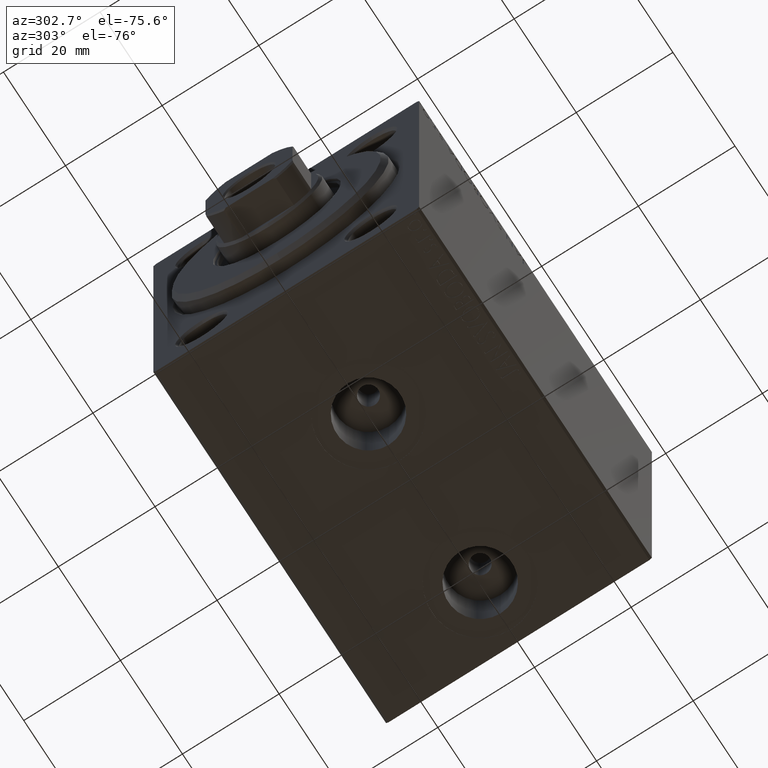
[diagram: clean part render]
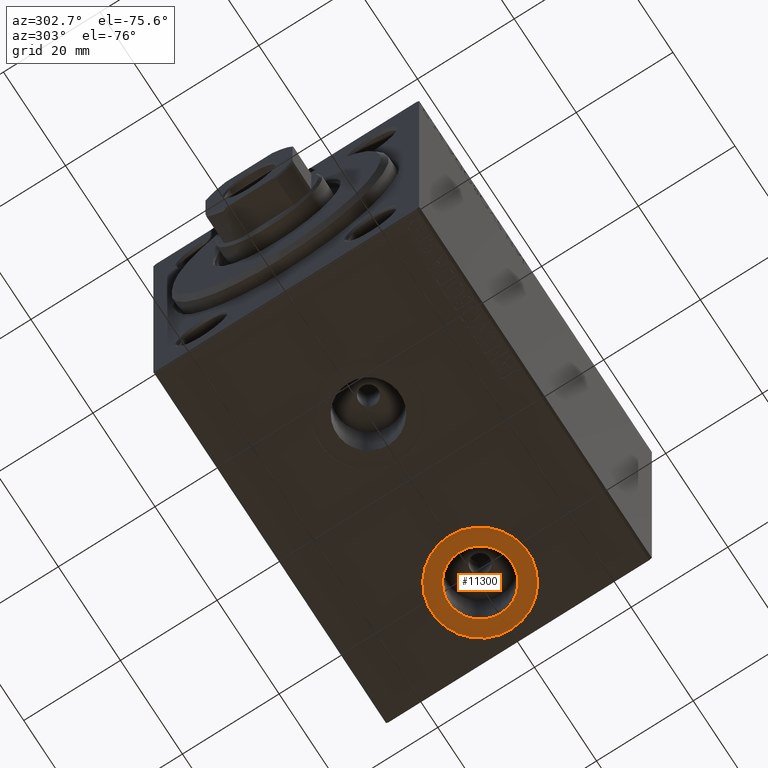
[diagram: same view with one face highlighted and labeled with its STEP entity id]
A machine part, auxiliary view. The second image highlights one B-rep face of the part: STEP entity #11300.
In plain terms, the highlighted planar face has unit normal (0, 0, -1).
Its self-contained STEP definition (entity closure, byte-faithful):
#1800 = CARTESIAN_POINT ( 'NONE',  ( 62.49999999999999289, -7.523326685254106813E-15, -37.39999999999999858 ) ) ;
#2183 = AXIS2_PLACEMENT_3D ( 'NONE', #11952, #25627, #29425 ) ;
#4035 = PLANE ( 'NONE',  #39872 ) ;
#5608 = DIRECTION ( 'NONE',  ( 0.000000000000000000, 0.000000000000000000, -1.000000000000000000 ) ) ;
#7395 = DIRECTION ( 'NONE',  ( 0.000000000000000000, 0.000000000000000000, -1.000000000000000000 ) ) ;
#8285 = FACE_OUTER_BOUND ( 'NONE', #29885, .T. ) ;
#9999 = CARTESIAN_POINT ( 'NONE',  ( 52.49999999999999289, -7.523326685254106813E-15, -37.39999999999999858 ) ) ;
#10076 = ORIENTED_EDGE ( 'NONE', *, *, #29024, .T. ) ;
#10896 = ORIENTED_EDGE ( 'NONE', *, *, #38721, .F. ) ;
#11300 = ADVANCED_FACE ( 'NONE', ( #25120, #8285 ), #4035, .T. ) ;
#11373 = CARTESIAN_POINT ( 'NONE',  ( 55.91999999999998749, -7.523326685254106813E-15, -37.39999999999999858 ) ) ;
#11678 = CIRCLE ( 'NONE', #17415, 6.580000000000002736 ) ;
#11952 = CARTESIAN_POINT ( 'NONE',  ( 62.49999999999999289, -7.523326685254106813E-15, -37.39999999999999858 ) ) ;
#12829 = ORIENTED_EDGE ( 'NONE', *, *, #35863, .F. ) ;
#14366 = CARTESIAN_POINT ( 'NONE',  ( 62.49999999999999289, -7.523326685254106813E-15, -37.39999999999999858 ) ) ;
#16559 = CARTESIAN_POINT ( 'NONE',  ( 69.07999999999999829, -6.717509091415148559E-15, -37.39999999999999858 ) ) ;
#17415 = AXIS2_PLACEMENT_3D ( 'NONE', #21880, #35542, #35982 ) ;
#18767 = VERTEX_POINT ( 'NONE', #16559 ) ;
#19403 = CIRCLE ( 'NONE', #2183, 10.00000000000000178 ) ;
#21614 = CIRCLE ( 'NONE', #23848, 10.00000000000000178 ) ;
#21880 = CARTESIAN_POINT ( 'NONE',  ( 62.49999999999999289, -7.523326685254106813E-15, -37.39999999999999858 ) ) ;
#22487 = VERTEX_POINT ( 'NONE', #11373 ) ;
#22523 = DIRECTION ( 'NONE',  ( 0.000000000000000000, 0.000000000000000000, -1.000000000000000000 ) ) ;
#23848 = AXIS2_PLACEMENT_3D ( 'NONE', #35752, #22523, #32606 ) ;
#25120 = FACE_BOUND ( 'NONE', #40652, .T. ) ;
#25627 = DIRECTION ( 'NONE',  ( 0.000000000000000000, 0.000000000000000000, -1.000000000000000000 ) ) ;
#28127 = AXIS2_PLACEMENT_3D ( 'NONE', #1800, #5608, #42849 ) ;
#29024 = EDGE_CURVE ( 'NONE', #35778, #41755, #19403, .T. ) ;
#29425 = DIRECTION ( 'NONE',  ( -1.000000000000000000, 0.000000000000000000, 0.000000000000000000 ) ) ;
#29885 = EDGE_LOOP ( 'NONE', ( #37014, #10076 ) ) ;
#31629 = DIRECTION ( 'NONE',  ( -1.000000000000000000, 0.000000000000000000, -0.000000000000000000 ) ) ;
#32606 = DIRECTION ( 'NONE',  ( -1.000000000000000000, 0.000000000000000000, 0.000000000000000000 ) ) ;
#34908 = EDGE_CURVE ( 'NONE', #41755, #35778, #21614, .T. ) ;
#35542 = DIRECTION ( 'NONE',  ( 0.000000000000000000, 0.000000000000000000, -1.000000000000000000 ) ) ;
#35752 = CARTESIAN_POINT ( 'NONE',  ( 62.49999999999999289, -7.523326685254106813E-15, -37.39999999999999858 ) ) ;
#35778 = VERTEX_POINT ( 'NONE', #42268 ) ;
#35863 = EDGE_CURVE ( 'NONE', #22487, #18767, #11678, .T. ) ;
#35982 = DIRECTION ( 'NONE',  ( -1.000000000000000000, 0.000000000000000000, 0.000000000000000000 ) ) ;
#37014 = ORIENTED_EDGE ( 'NONE', *, *, #34908, .T. ) ;
#38721 = EDGE_CURVE ( 'NONE', #18767, #22487, #43869, .T. ) ;
#39872 = AXIS2_PLACEMENT_3D ( 'NONE', #14366, #7395, #31629 ) ;
#40652 = EDGE_LOOP ( 'NONE', ( #12829, #10896 ) ) ;
#41755 = VERTEX_POINT ( 'NONE', #9999 ) ;
#42268 = CARTESIAN_POINT ( 'NONE',  ( 72.50000000000000000, -6.298679886106752964E-15, -37.39999999999999858 ) ) ;
#42849 = DIRECTION ( 'NONE',  ( -1.000000000000000000, 0.000000000000000000, 0.000000000000000000 ) ) ;
#43869 = CIRCLE ( 'NONE', #28127, 6.580000000000002736 ) ;